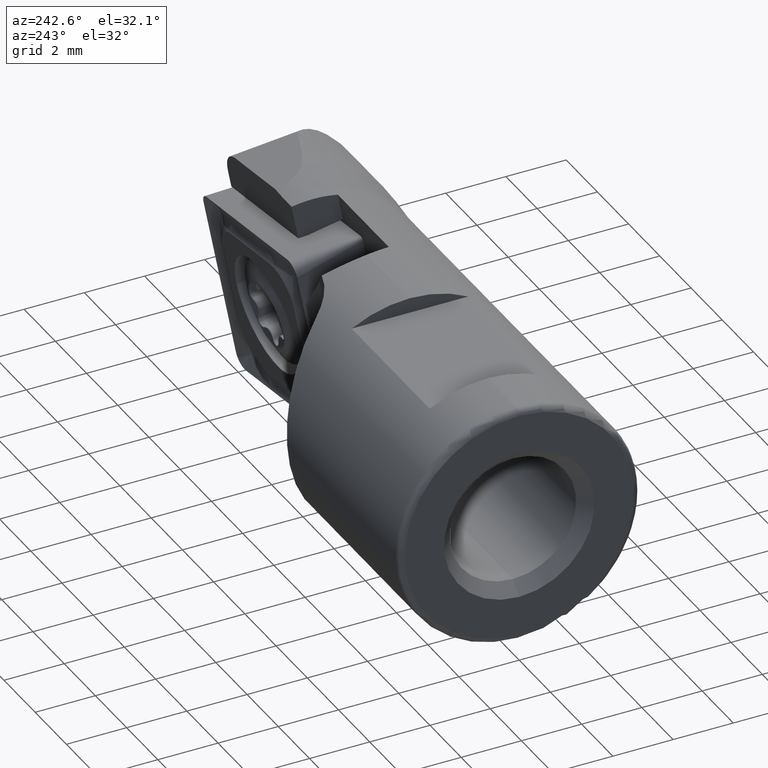
[diagram: clean part render]
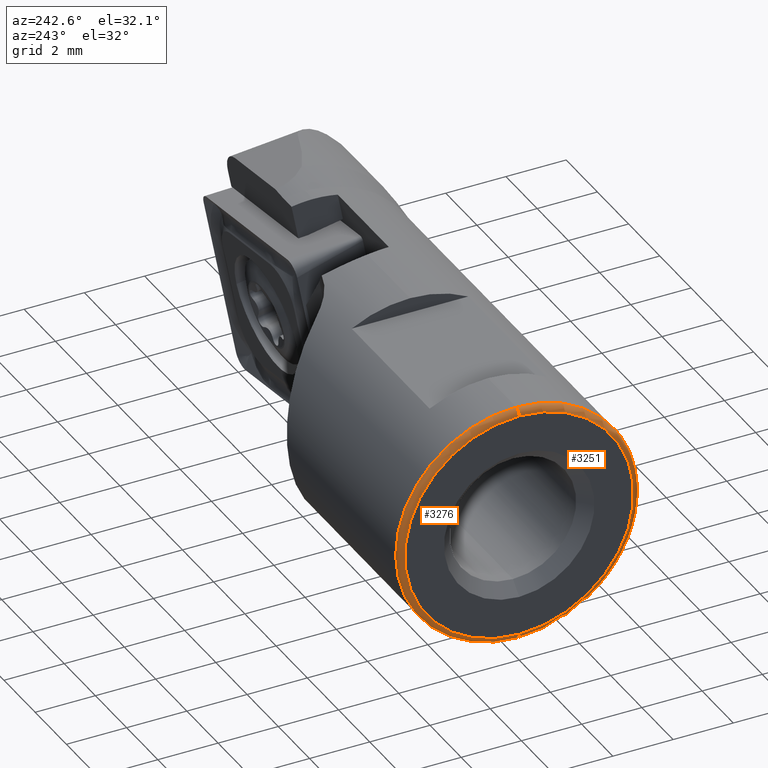
[diagram: same view with one multi-face feature highlighted, each face labeled with its STEP entity id]
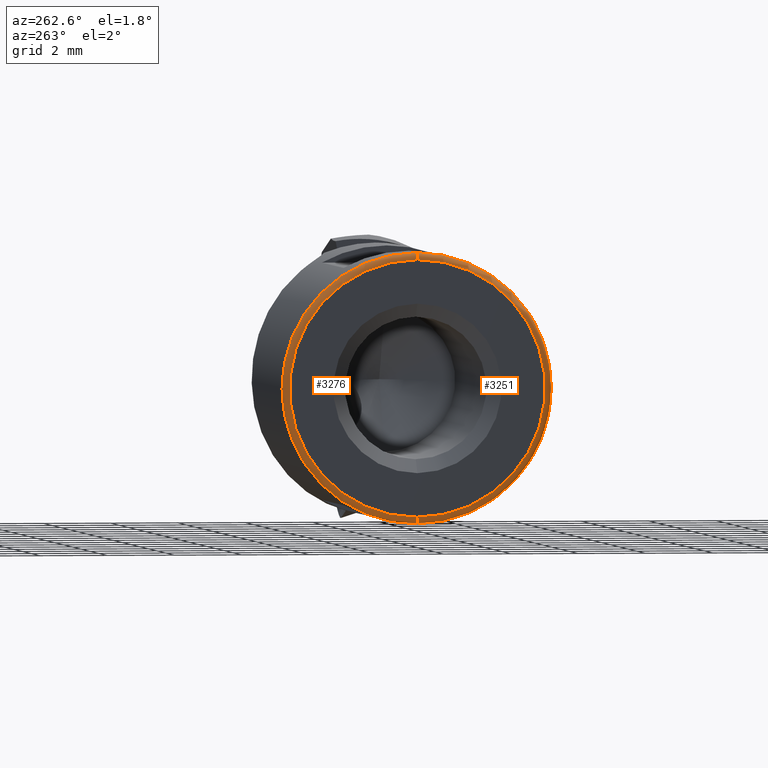
[diagram: same view with one multi-face feature highlighted, each face labeled with its STEP entity id]
A machine part, auxiliary view. The highlighted faces form ONE feature: a constant-radius fillet chain: 2 tangent blend faces with common blend radius 0.2 mm. The faces share edges in the B-rep.
A second angle (auxiliary view) of the same feature is appended — it is thin or edge-on in the first view.
Their STEP definitions:
[1] entity #3276 (Torus):
#202 = AXIS2_PLACEMENT_3D ( 'NONE', #3253, #1079, #3623 ) ;
#249 = CARTESIAN_POINT ( 'NONE',  ( -17.80000000000000100, 0.0000000000000000000, 0.5750000000000012900 ) ) ;
#252 = DIRECTION ( 'NONE',  ( 1.000000000000000000, 0.0000000000000000000, 0.0000000000000000000 ) ) ;
#270 = DIRECTION ( 'NONE',  ( 0.0000000000000000000, 0.0000000000000000000, -1.000000000000000000 ) ) ;
#616 = DIRECTION ( 'NONE',  ( 0.0000000000000000000, 0.0000000000000000000, -1.000000000000000000 ) ) ;
#655 = TOROIDAL_SURFACE ( 'NONE', #3744, 3.799999999999998900, 0.2000000000000000100 ) ;
#839 = CARTESIAN_POINT ( 'NONE',  ( -17.80000000000000100, 4.653657836759941700E-016, 8.175000000000000700 ) ) ;
#1059 = CARTESIAN_POINT ( 'NONE',  ( -17.80000000000000100, 0.0000000000000000000, 4.375000000000000000 ) ) ;
#1069 = AXIS2_PLACEMENT_3D ( 'NONE', #249, #2777, #616 ) ;
#1079 = DIRECTION ( 'NONE',  ( -1.000000000000000000, -0.0000000000000000000, -0.0000000000000000000 ) ) ;
#1081 = EDGE_CURVE ( 'NONE', #3929, #3439, #2930, .T. ) ;
#1213 = DIRECTION ( 'NONE',  ( 0.0000000000000000000, 1.224646799147348300E-016, 1.000000000000000000 ) ) ;
#1235 = CIRCLE ( 'NONE', #2549, 3.999999999999999100 ) ;
#1419 = VERTEX_POINT ( 'NONE', #3084 ) ;
#1433 = DIRECTION ( 'NONE',  ( 0.0000000000000000000, 0.0000000000000000000, -1.000000000000000000 ) ) ;
#1655 = CARTESIAN_POINT ( 'NONE',  ( -18.00000000000000000, 0.0000000000000000000, 0.5750000000000012900 ) ) ;
#1705 = CARTESIAN_POINT ( 'NONE',  ( -17.80000000000000100, 0.0000000000000000000, 4.375000000000000000 ) ) ;
#1992 = EDGE_CURVE ( 'NONE', #4190, #1419, #3338, .T. ) ;
#2023 = CIRCLE ( 'NONE', #202, 3.799999999999998900 ) ;
#2400 = EDGE_CURVE ( 'NONE', #3439, #1419, #1235, .T. ) ;
#2549 = AXIS2_PLACEMENT_3D ( 'NONE', #1059, #3602, #1433 ) ;
#2777 = DIRECTION ( 'NONE',  ( 0.0000000000000000000, -1.000000000000000000, 0.0000000000000000000 ) ) ;
#2813 = EDGE_CURVE ( 'NONE', #4190, #3929, #2023, .T. ) ;
#2930 = CIRCLE ( 'NONE', #1069, 0.1999999999999999800 ) ;
#3084 = CARTESIAN_POINT ( 'NONE',  ( -17.80000000000000100, 0.0000000000000000000, 8.375000000000000000 ) ) ;
#3200 = ORIENTED_EDGE ( 'NONE', *, *, #2400, .F. ) ;
#3253 = CARTESIAN_POINT ( 'NONE',  ( -18.00000000000000000, 0.0000000000000000000, 4.375000000000000000 ) ) ;
#3276 = ADVANCED_FACE ( 'NONE', ( #3447 ), #655, .T. ) ;
#3338 = CIRCLE ( 'NONE', #4210, 0.2000000000000005100 ) ;
#3382 = DIRECTION ( 'NONE',  ( 0.0000000000000000000, 1.000000000000000000, -1.224646799147353200E-016 ) ) ;
#3439 = VERTEX_POINT ( 'NONE', #3565 ) ;
#3447 = FACE_OUTER_BOUND ( 'NONE', #4567, .T. ) ;
#3565 = CARTESIAN_POINT ( 'NONE',  ( -17.80000000000000100, 4.898587196589411800E-016, 0.3750000000000012200 ) ) ;
#3602 = DIRECTION ( 'NONE',  ( 1.000000000000000000, 0.0000000000000000000, 0.0000000000000000000 ) ) ;
#3623 = DIRECTION ( 'NONE',  ( 0.0000000000000000000, 0.0000000000000000000, -1.000000000000000000 ) ) ;
#3648 = ORIENTED_EDGE ( 'NONE', *, *, #2813, .F. ) ;
#3744 = AXIS2_PLACEMENT_3D ( 'NONE', #1705, #252, #270 ) ;
#3905 = ORIENTED_EDGE ( 'NONE', *, *, #1081, .F. ) ;
#3929 = VERTEX_POINT ( 'NONE', #1655 ) ;
#3968 = CARTESIAN_POINT ( 'NONE',  ( -18.00000000000000000, 4.776122516674676300E-016, 8.175000000000000700 ) ) ;
#4190 = VERTEX_POINT ( 'NONE', #3968 ) ;
#4210 = AXIS2_PLACEMENT_3D ( 'NONE', #839, #3382, #1213 ) ;
#4567 = EDGE_LOOP ( 'NONE', ( #3648, #4641, #3200, #3905 ) ) ;
#4641 = ORIENTED_EDGE ( 'NONE', *, *, #1992, .T. ) ;
[2] entity #3251 (Torus):
#249 = CARTESIAN_POINT ( 'NONE',  ( -17.80000000000000100, 0.0000000000000000000, 0.5750000000000012900 ) ) ;
#603 = DIRECTION ( 'NONE',  ( 0.0000000000000000000, 0.0000000000000000000, -1.000000000000000000 ) ) ;
#616 = DIRECTION ( 'NONE',  ( 0.0000000000000000000, 0.0000000000000000000, -1.000000000000000000 ) ) ;
#839 = CARTESIAN_POINT ( 'NONE',  ( -17.80000000000000100, 4.653657836759941700E-016, 8.175000000000000700 ) ) ;
#1013 = CARTESIAN_POINT ( 'NONE',  ( -17.80000000000000100, 0.0000000000000000000, 4.375000000000000000 ) ) ;
#1069 = AXIS2_PLACEMENT_3D ( 'NONE', #249, #2777, #616 ) ;
#1081 = EDGE_CURVE ( 'NONE', #3929, #3439, #2930, .T. ) ;
#1213 = DIRECTION ( 'NONE',  ( 0.0000000000000000000, 1.224646799147348300E-016, 1.000000000000000000 ) ) ;
#1395 = DIRECTION ( 'NONE',  ( 0.0000000000000000000, 0.0000000000000000000, -1.000000000000000000 ) ) ;
#1419 = VERTEX_POINT ( 'NONE', #3084 ) ;
#1625 = TOROIDAL_SURFACE ( 'NONE', #3011, 3.799999999999998900, 0.2000000000000000100 ) ;
#1655 = CARTESIAN_POINT ( 'NONE',  ( -18.00000000000000000, 0.0000000000000000000, 0.5750000000000012900 ) ) ;
#1812 = EDGE_CURVE ( 'NONE', #1419, #3439, #2821, .T. ) ;
#1818 = EDGE_LOOP ( 'NONE', ( #3944, #4368, #1937, #2148 ) ) ;
#1937 = ORIENTED_EDGE ( 'NONE', *, *, #1081, .T. ) ;
#1992 = EDGE_CURVE ( 'NONE', #4190, #1419, #3338, .T. ) ;
#2133 = CARTESIAN_POINT ( 'NONE',  ( -18.00000000000000000, 0.0000000000000000000, 4.375000000000000000 ) ) ;
#2148 = ORIENTED_EDGE ( 'NONE', *, *, #1812, .F. ) ;
#2500 = DIRECTION ( 'NONE',  ( 0.0000000000000000000, 0.0000000000000000000, -1.000000000000000000 ) ) ;
#2727 = EDGE_CURVE ( 'NONE', #3929, #4190, #2978, .T. ) ;
#2766 = CARTESIAN_POINT ( 'NONE',  ( -17.80000000000000100, 0.0000000000000000000, 4.375000000000000000 ) ) ;
#2777 = DIRECTION ( 'NONE',  ( 0.0000000000000000000, -1.000000000000000000, 0.0000000000000000000 ) ) ;
#2821 = CIRCLE ( 'NONE', #4037, 3.999999999999999100 ) ;
#2930 = CIRCLE ( 'NONE', #1069, 0.1999999999999999800 ) ;
#2978 = CIRCLE ( 'NONE', #3925, 3.799999999999998900 ) ;
#3011 = AXIS2_PLACEMENT_3D ( 'NONE', #2766, #4219, #603 ) ;
#3084 = CARTESIAN_POINT ( 'NONE',  ( -17.80000000000000100, 0.0000000000000000000, 8.375000000000000000 ) ) ;
#3251 = ADVANCED_FACE ( 'NONE', ( #4516 ), #1625, .T. ) ;
#3338 = CIRCLE ( 'NONE', #4210, 0.2000000000000005100 ) ;
#3382 = DIRECTION ( 'NONE',  ( 0.0000000000000000000, 1.000000000000000000, -1.224646799147353200E-016 ) ) ;
#3439 = VERTEX_POINT ( 'NONE', #3565 ) ;
#3565 = CARTESIAN_POINT ( 'NONE',  ( -17.80000000000000100, 4.898587196589411800E-016, 0.3750000000000012200 ) ) ;
#3570 = DIRECTION ( 'NONE',  ( 1.000000000000000000, 0.0000000000000000000, 0.0000000000000000000 ) ) ;
#3925 = AXIS2_PLACEMENT_3D ( 'NONE', #2133, #4658, #2500 ) ;
#3929 = VERTEX_POINT ( 'NONE', #1655 ) ;
#3944 = ORIENTED_EDGE ( 'NONE', *, *, #1992, .F. ) ;
#3968 = CARTESIAN_POINT ( 'NONE',  ( -18.00000000000000000, 4.776122516674676300E-016, 8.175000000000000700 ) ) ;
#4037 = AXIS2_PLACEMENT_3D ( 'NONE', #1013, #3570, #1395 ) ;
#4190 = VERTEX_POINT ( 'NONE', #3968 ) ;
#4210 = AXIS2_PLACEMENT_3D ( 'NONE', #839, #3382, #1213 ) ;
#4219 = DIRECTION ( 'NONE',  ( 1.000000000000000000, 0.0000000000000000000, 0.0000000000000000000 ) ) ;
#4368 = ORIENTED_EDGE ( 'NONE', *, *, #2727, .F. ) ;
#4516 = FACE_OUTER_BOUND ( 'NONE', #1818, .T. ) ;
#4658 = DIRECTION ( 'NONE',  ( -1.000000000000000000, -0.0000000000000000000, -0.0000000000000000000 ) ) ;